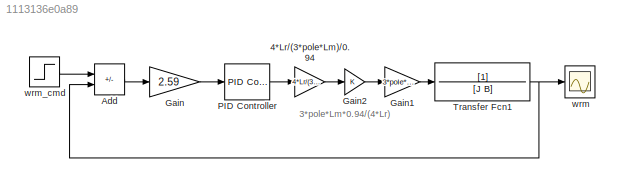
MODEL slx_1113136e0a89
KIND model
CONFIG AbsTol = auto
CONFIG EnableMultiTasking = off
CONFIG FixedStep = auto
CONFIG MaxStep = 0.0005
CONFIG MinStep = auto
CONFIG RelTol = 1e-3
CONFIG SampleTimeConstraint = Unconstrained
CONFIG SolverName = VariableStepAuto
CONFIG StartTime = 0.0
CONFIG StopTime = 2
BLOCK [Gain] 4*Lr//(3*pole*Lm)//0.94
  Gain = 4*Lr/(3*pole*Lm)/0.94
  NameLocation = top
BLOCK [Sum] Add
  IconShape = rectangular
  Inputs = +-
BLOCK [Gain] Gain
  Gain = 2.59
BLOCK [Gain] Gain1
  Gain = 3*pole*Lm*0.94/(4*Lr)
BLOCK [Gain] Gain2
BLOCK [Reference] PID Controller  REF=slpidlib/PID Controller
  LibrarySourceBlock = simulink/Continuous/PID Controller
  SourceBlock = slpidlib/PID Controller
  SourceType = PID 1dof
BLOCK [TransferFcn] Transfer Fcn1
  Denominator = [J B]
BLOCK [Scope] wrm
  Floating = off
  NumInputPorts = 1
  ScopeSpecificationString = Simulink.scopes.TimeScopeBlockCfg('CurrentConfiguration', extmgr.ConfigurationSet(extmgr.Configuration('Core','General UI',true,'FigureColor',[1 1 1]),extmgr.Configuration('Core','Source UI',true),extmgr.Configuration('Sources','WiredSimulink',true,'DataLoggingVariableName','ScopeData1'),extmgr.Configuration('Visuals','Time Domain',true,'SerializedDisplays',{struct('MinYLimReal','-0.09922','MaxYLi...<+1568ch>
BLOCK [Step] wrm_cmd
  SampleTime = 0
ANNOTATION (root): 3*pole*Lm*0.94/(4*Lr)
LINE 4*Lr//(3*pole*Lm)//0.94:1 -> Gain2:1
LINE Add:1 -> Gain:1
LINE Gain1:1 -> Transfer Fcn1:1
LINE Gain2:1 -> Gain1:1
LINE Gain:1 -> PID Controller:1
LINE PID Controller:1 -> 4*Lr//(3*pole*Lm)//0.94:1
NET Transfer Fcn1:1 -> Add:2, wrm:1
LINE wrm_cmd:1 -> Add:1
note: NET lines group one-source signal fan-out (src -> all destinations, sorted); 1:1 wires keep LINE
